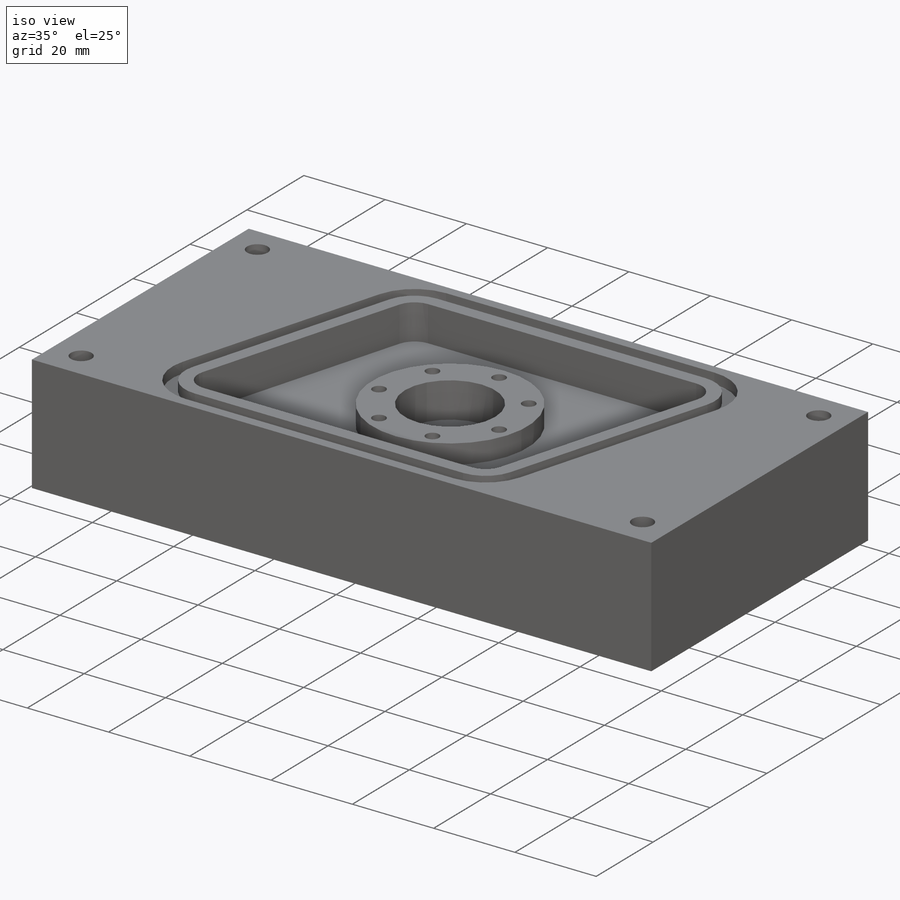
[diagram: iso view]
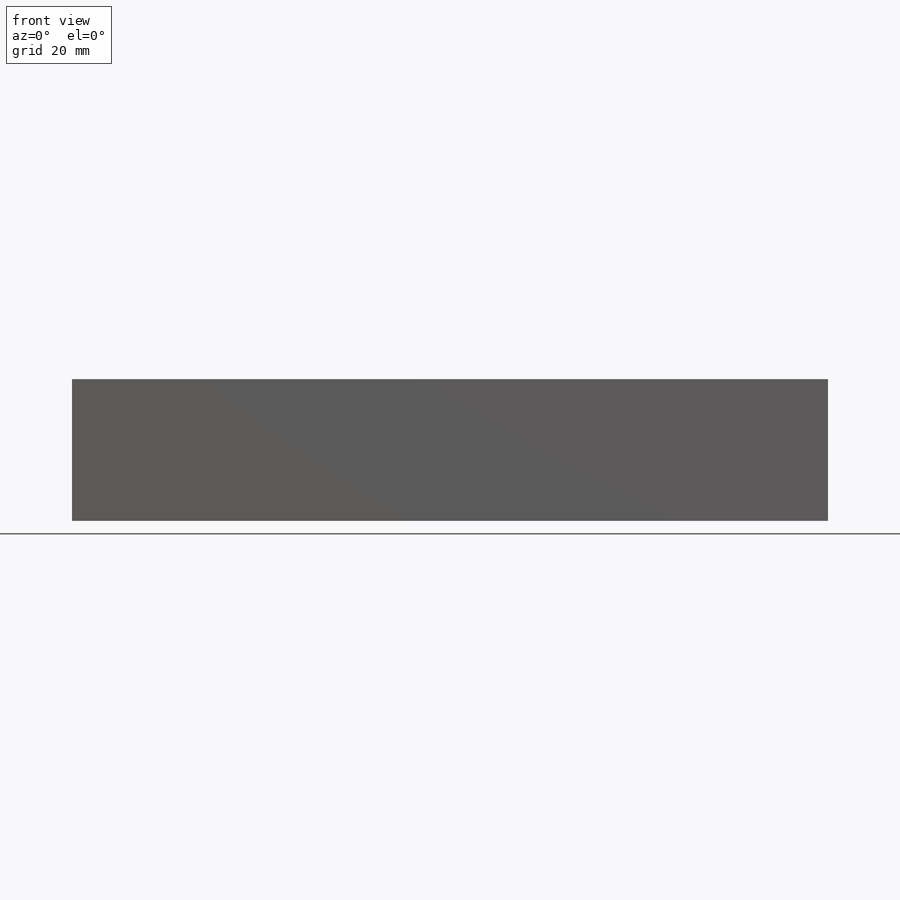
[diagram: front view]
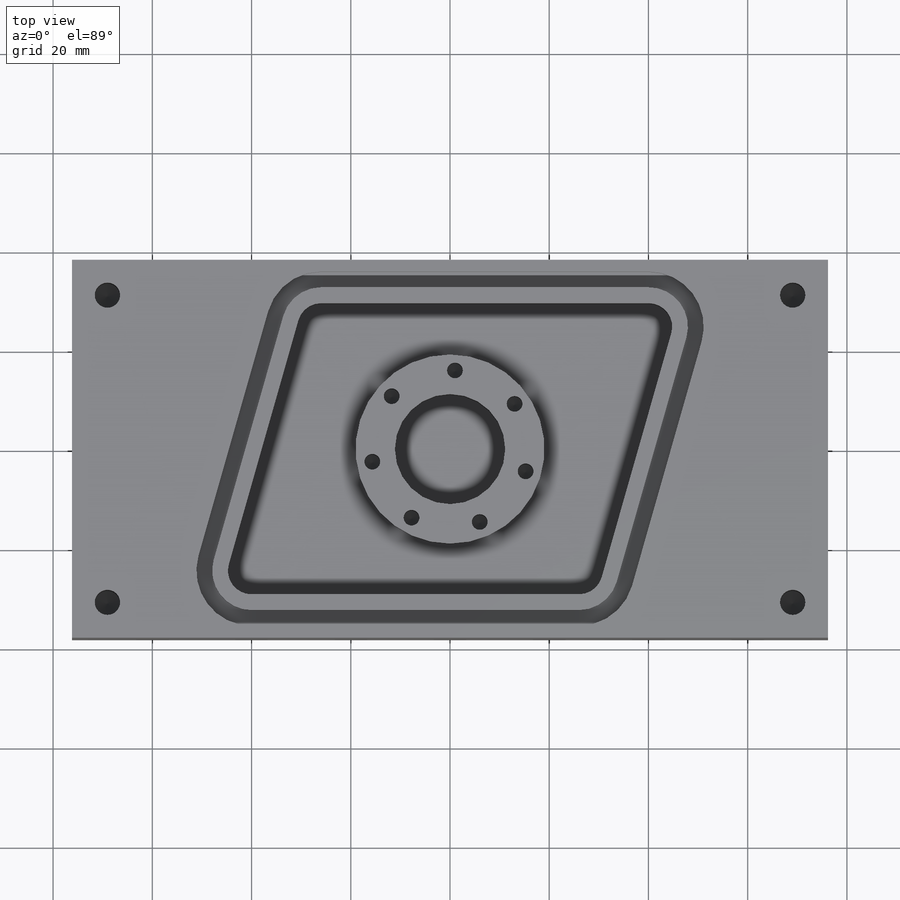
[diagram: top view]
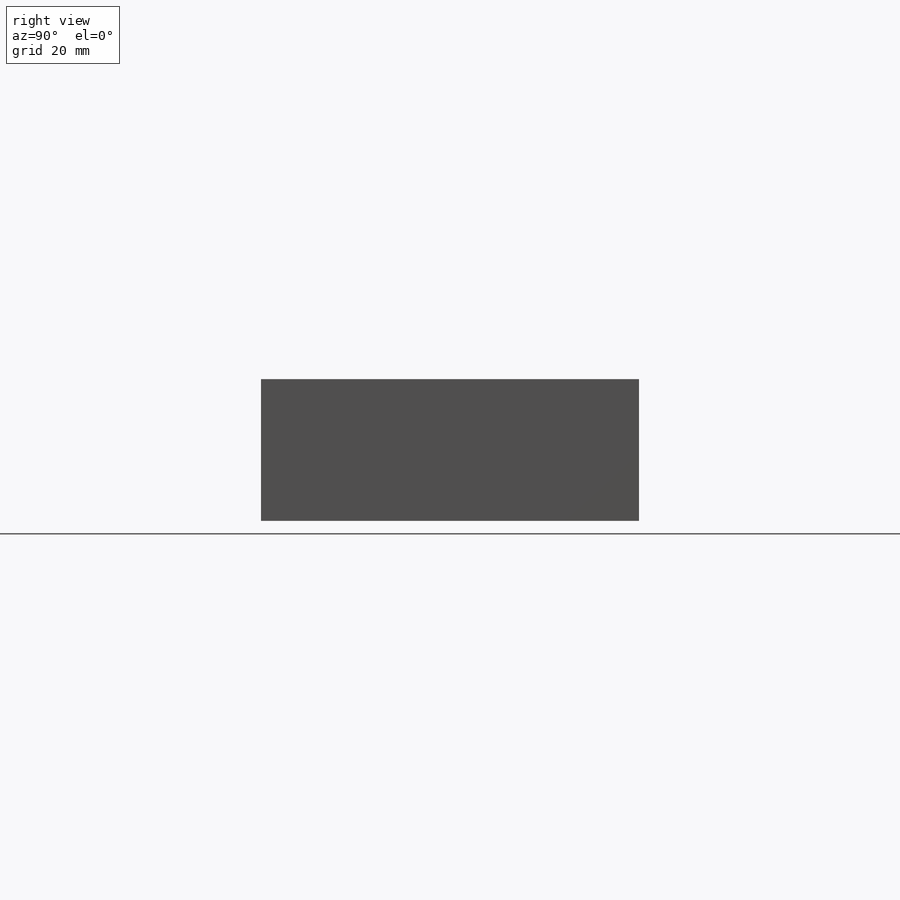
[diagram: right view]
SOLIDWORKS PART (.sldprt)
format: sldprt  version: not decoded by parser v0  size: 385,536 bytes
history: native  units: mm
features: sketch x9, cut_extrude x4, hole x2, material x1, extrude x1, pattern_circular x1 (+12 scaffold rows collapsed)
feature tree (30):
  scaffold x12  (default folders/planes/origin — collapsed)
  material  "Material <not specified>"
  sketch  "Sketch1"  dims[D1=152.4mm D2=76.2mm]
  extrude  "Boss-Extrude1"  Depth=28.575mm
  hole  "#7 (0.201) Diameter Hole1"  Diameter=5.1054mm Depth=12.7mm
  sketch  "Sketch3"  dims[D1=7.1374mm D2=7.1374mm D3=7.1374mm D4=7.1374mm D5=7.1374mm D6=7.1374mm D7=7.1374mm D8=7.1374mm]
  sketch  "Sketch2"  dims[hole-wizard template sketch: 47 standard entries collapsed; hole parameters kept: c15.Hole Depth=12.7mm c15.D3=~14.816244mm c15.Drill Angle=118.0deg]
  sketch  "Sketch4"  dims[c1.D1=~6.878589mm c1.D3=~10.31875mm c2.D1=76.2mm c2.D2=38.1mm]
  cut_extrude  "Cut-Extrude1"  Depth=12.7mm
  hole  "1/8 (0.125) Diameter Hole2"  Diameter=3.175mm Depth=12.7mm
  sketch  "Sketch15"  dims[c1.D2=31.75mm c1.D1=~47.531306mm c2.D1=35.0deg]
  sketch  "Sketch14"  dims[hole-wizard template sketch: 47 standard entries collapsed; hole parameters kept: c15.Hole Depth=12.7mm c15.D3=~14.816244mm c15.Drill Angle=118.0deg]
  pattern_circular  "CirPattern2"  Count=7 Angle=360deg
  sketch  "Sketch9"  dims[D1=22.225mm]
  cut_extrude  "Cut-Extrude5"  Depth=3.9624mm
  sketch  "Sketch10"  dims[c1.D5=4.7625mm c1.D3=22.225mm c1.D4=22.225mm c1.D6=22.225mm c1.D7=22.225mm c1.D1=8.7376mm c1.D2=8.7376mm c2.D3=42.8625mm c2.D4=42.8625mm c3.D3=25.9842mm c3.D4=25.9842mm c3.D6=40.005mm c3.D7=40.005mm]
  cut_extrude  "Cut-Extrude6"  Depth=8.7122mm
  sketch  "Sketch11"  dims[D1=3.175mm D2=3.175mm D3=3.175mm D4=3.175mm D5=3.175mm D6=3.175mm D7=3.175mm D8=3.175mm D9=3.175mm]
  cut_extrude  "Cut-Extrude7"  Depth=2.5908mm
decode coverage: 17 of 17 modeling features carry decoded parameters
note: ~ marks probable driven/reference dimensions
note: suppression state not decoded; provenance and decode notes live in map.json
